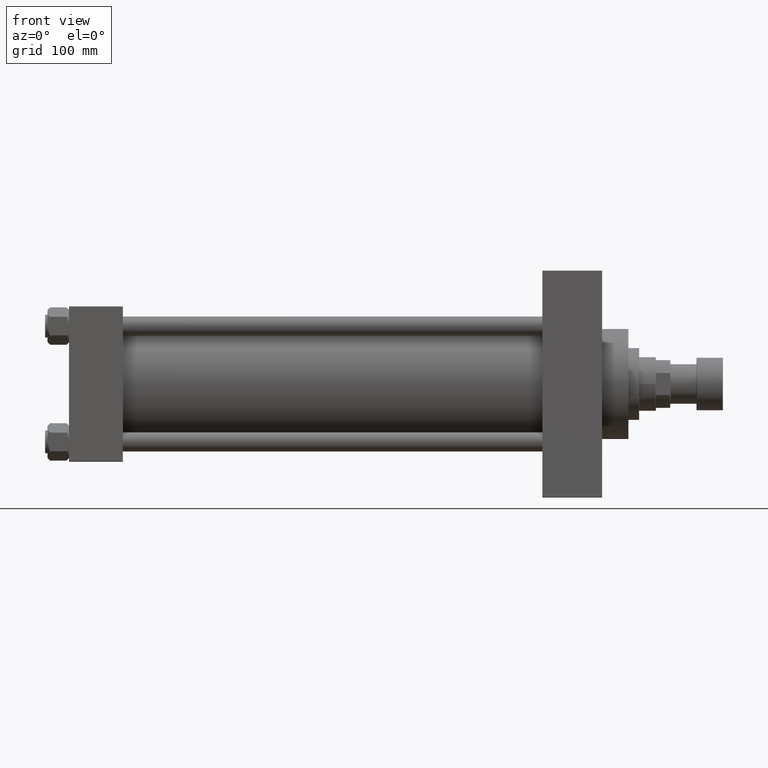
[diagram: clean part render]
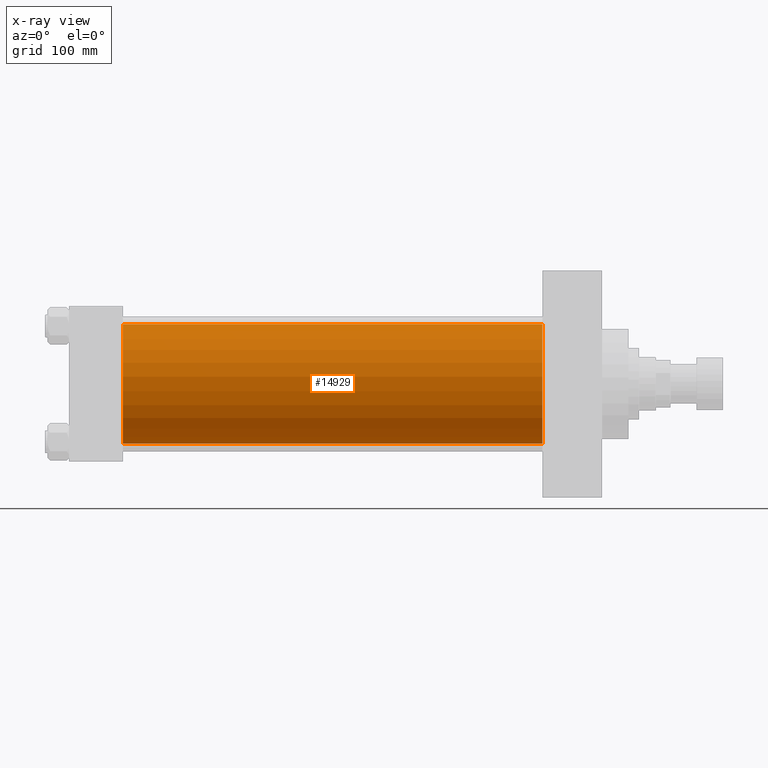
[diagram: x-ray — body ghosted, one internal face saturated and labeled with its STEP entity id]
A machine part, front view, then the same camera in x-ray: the body is ghosted and one INTERNAL B-rep face — a face not visible from any outside direction — is saturated and labeled: STEP entity #14929.
In plain terms, the highlighted cylindrical surface (partial cylindrical patch) has radius 50 mm, axis along (-1, -0, -0).
Its self-contained STEP definition (entity closure, byte-faithful):
#1131 = VERTEX_POINT ( 'NONE', #16424 ) ;
#1600 = DIRECTION ( 'NONE',  ( 1.000000000000000000, 0.000000000000000000, 0.000000000000000000 ) ) ;
#2443 = EDGE_LOOP ( 'NONE', ( #19950, #11019, #12614, #18427 ) ) ;
#5599 = DIRECTION ( 'NONE',  ( 1.000000000000000000, 0.000000000000000000, 0.000000000000000000 ) ) ;
#7236 = CARTESIAN_POINT ( 'NONE',  ( 45.00000000000000000, 3.521148781771555838E-15, -50.00000000000000000 ) ) ;
#7479 = CARTESIAN_POINT ( 'NONE',  ( 45.00000000000000000, -2.602085213965210642E-15, 50.00000000000000000 ) ) ;
#9131 = DIRECTION ( 'NONE',  ( 0.000000000000000000, 0.000000000000000000, -1.000000000000000000 ) ) ;
#11019 = ORIENTED_EDGE ( 'NONE', *, *, #38433, .T. ) ;
#12164 = AXIS2_PLACEMENT_3D ( 'NONE', #23750, #1600, #9131 ) ;
#12614 = ORIENTED_EDGE ( 'NONE', *, *, #22479, .F. ) ;
#12822 = AXIS2_PLACEMENT_3D ( 'NONE', #25768, #48136, #14808 ) ;
#13071 = CARTESIAN_POINT ( 'NONE',  ( 395.9999999999999432, -2.602085213965210642E-15, 50.00000000000000000 ) ) ;
#14808 = DIRECTION ( 'NONE',  ( 0.000000000000000000, 0.000000000000000000, 1.000000000000000000 ) ) ;
#14929 = ADVANCED_FACE ( 'NONE', ( #29176 ), #40354, .F. ) ;
#16060 = EDGE_CURVE ( 'NONE', #34052, #28058, #19654, .T. ) ;
#16424 = CARTESIAN_POINT ( 'NONE',  ( 395.9999999999999432, 3.521148781771555838E-15, -50.00000000000000000 ) ) ;
#18427 = ORIENTED_EDGE ( 'NONE', *, *, #16060, .F. ) ;
#19488 = LINE ( 'NONE', #41622, #31422 ) ;
#19654 = LINE ( 'NONE', #13071, #32278 ) ;
#19950 = ORIENTED_EDGE ( 'NONE', *, *, #27644, .T. ) ;
#22475 = AXIS2_PLACEMENT_3D ( 'NONE', #41871, #5599, #35526 ) ;
#22479 = EDGE_CURVE ( 'NONE', #28058, #40879, #26940, .T. ) ;
#23750 = CARTESIAN_POINT ( 'NONE',  ( 45.00000000000000000, -2.602085213965210642E-15, 0.000000000000000000 ) ) ;
#25768 = CARTESIAN_POINT ( 'NONE',  ( 395.9999999999999432, -2.602085213965210642E-15, 0.000000000000000000 ) ) ;
#26940 = CIRCLE ( 'NONE', #12164, 50.00000000000000000 ) ;
#27031 = DIRECTION ( 'NONE',  ( -1.000000000000000000, -0.000000000000000000, -0.000000000000000000 ) ) ;
#27644 = EDGE_CURVE ( 'NONE', #34052, #1131, #32555, .T. ) ;
#28058 = VERTEX_POINT ( 'NONE', #7479 ) ;
#29176 = FACE_OUTER_BOUND ( 'NONE', #2443, .T. ) ;
#31422 = VECTOR ( 'NONE', #27031, 1000.000000000000000 ) ;
#32278 = VECTOR ( 'NONE', #41557, 1000.000000000000000 ) ;
#32555 = CIRCLE ( 'NONE', #22475, 50.00000000000000000 ) ;
#34052 = VERTEX_POINT ( 'NONE', #46796 ) ;
#35526 = DIRECTION ( 'NONE',  ( 0.000000000000000000, 0.000000000000000000, -1.000000000000000000 ) ) ;
#38433 = EDGE_CURVE ( 'NONE', #1131, #40879, #19488, .T. ) ;
#40354 = CYLINDRICAL_SURFACE ( 'NONE', #12822, 50.00000000000000000 ) ;
#40879 = VERTEX_POINT ( 'NONE', #7236 ) ;
#41557 = DIRECTION ( 'NONE',  ( -1.000000000000000000, -0.000000000000000000, -0.000000000000000000 ) ) ;
#41622 = CARTESIAN_POINT ( 'NONE',  ( 395.9999999999999432, 3.521148781771555838E-15, -50.00000000000000000 ) ) ;
#41871 = CARTESIAN_POINT ( 'NONE',  ( 395.9999999999999432, -2.602085213965210642E-15, 0.000000000000000000 ) ) ;
#46796 = CARTESIAN_POINT ( 'NONE',  ( 395.9999999999999432, -2.602085213965210642E-15, 50.00000000000000000 ) ) ;
#48136 = DIRECTION ( 'NONE',  ( -1.000000000000000000, -0.000000000000000000, -0.000000000000000000 ) ) ;